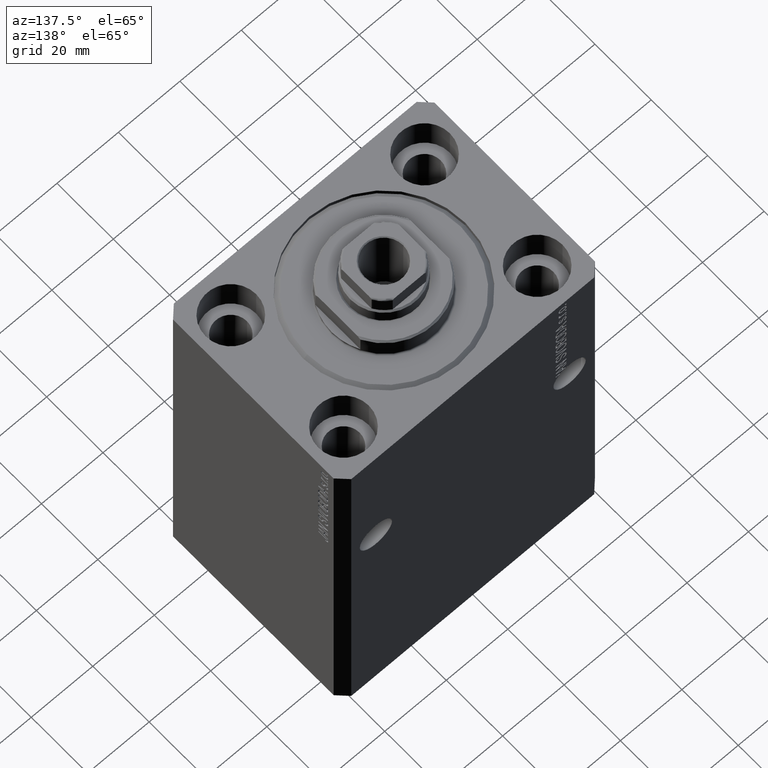
[diagram: clean part render]
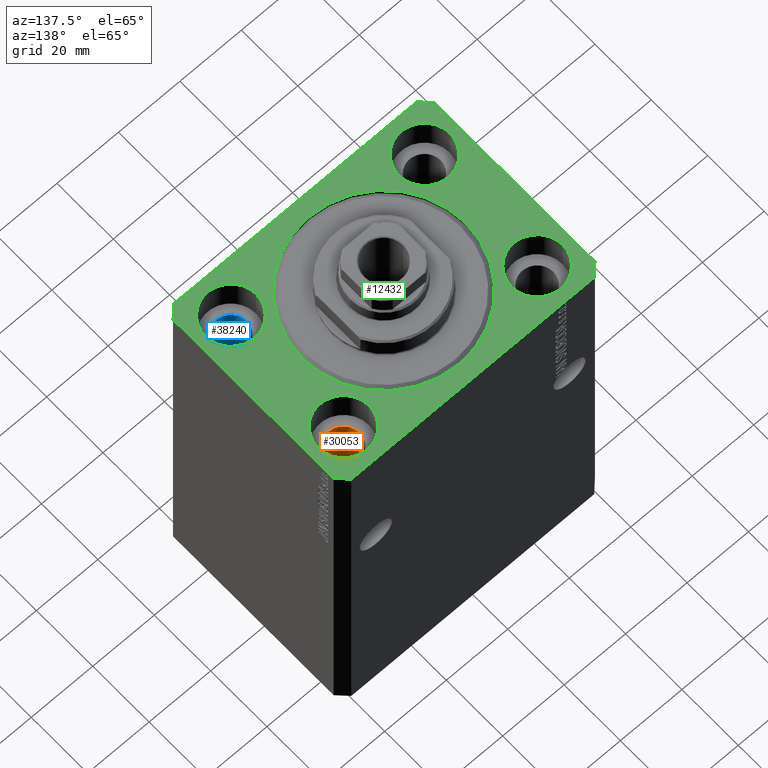
[diagram: same view with three faces highlighted in distinct colors, each labeled with its STEP entity id]
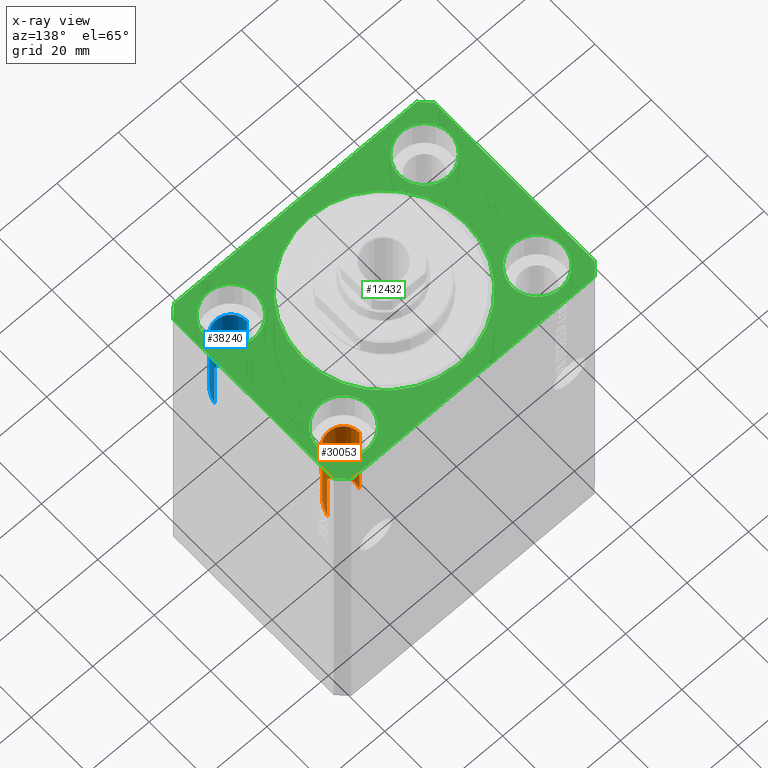
[diagram: x-ray of the same camera — body ghosted, the three highlighted faces saturated]
A machine part, auxiliary view with three faces highlighted in distinct colors.
The next image is the same camera in x-ray (body ghosted, the three faces saturated) — at least one of them is partly hidden behind the body in this view.
Their STEP definitions:

[orange] entity #30053 — the highlighted cylindrical surface (edge-blend (fillet) strip) has radius 5.25 mm, axis along (0, 0, 1).
#426 = CARTESIAN_POINT ( 'NONE',  ( 26.25000000000001066, 20.00000000000001066, -43.00000000000000000 ) ) ;
#1425 = CARTESIAN_POINT ( 'NONE',  ( 36.75000000000000000, 20.00000000000001066, -11.00000000000000000 ) ) ;
#2654 = CARTESIAN_POINT ( 'NONE',  ( 26.25000000000000355, 20.00000000000001066, -123.0000000000000000 ) ) ;
#2909 = FACE_OUTER_BOUND ( 'NONE', #40093, .T. ) ;
#3221 = DIRECTION ( 'NONE',  ( -0.000000000000000000, -0.000000000000000000, 1.000000000000000000 ) ) ;
#5150 = CARTESIAN_POINT ( 'NONE',  ( 26.25000000000001066, 20.00000000000001066, -43.00000000000000000 ) ) ;
#5717 = ORIENTED_EDGE ( 'NONE', *, *, #16400, .T. ) ;
#6108 = EDGE_CURVE ( 'NONE', #27236, #11741, #9751, .T. ) ;
#7091 = ORIENTED_EDGE ( 'NONE', *, *, #40215, .F. ) ;
#8584 = VECTOR ( 'NONE', #20137, 1000.000000000000000 ) ;
#9492 = DIRECTION ( 'NONE',  ( 1.000000000000000000, 0.000000000000000000, 0.000000000000000000 ) ) ;
#9751 =( BOUNDED_CURVE ( )  B_SPLINE_CURVE ( 3, ( #43433, #33688, #36206, #5150 ),
 .UNSPECIFIED., .F., .F. ) 
 B_SPLINE_CURVE_WITH_KNOTS ( ( 4, 4 ),
 ( 4.712388980384689674, 7.853981633974482790 ),
 .UNSPECIFIED. ) 
 CURVE ( )  GEOMETRIC_REPRESENTATION_ITEM ( )  RATIONAL_B_SPLINE_CURVE ( ( 1.000000000000000000, 0.3333333333333333703, 0.3333333333333333703, 1.000000000000000000 ) ) 
 REPRESENTATION_ITEM ( '' )  );
#11741 = VERTEX_POINT ( 'NONE', #426 ) ;
#13216 = LINE ( 'NONE', #16854, #30769 ) ;
#15999 = AXIS2_PLACEMENT_3D ( 'NONE', #17210, #16760, #9492 ) ;
#16022 = VERTEX_POINT ( 'NONE', #1425 ) ;
#16400 = EDGE_CURVE ( 'NONE', #11741, #29051, #34374, .T. ) ;
#16760 = DIRECTION ( 'NONE',  ( -0.000000000000000000, -0.000000000000000000, 1.000000000000000000 ) ) ;
#16854 = CARTESIAN_POINT ( 'NONE',  ( 36.75000000000000000, 20.00000000000001066, -123.0000000000000000 ) ) ;
#17210 = CARTESIAN_POINT ( 'NONE',  ( 31.50000000000000000, 20.00000000000001066, -123.0000000000000000 ) ) ;
#17541 = DIRECTION ( 'NONE',  ( 1.000000000000000000, 0.000000000000000000, 0.000000000000000000 ) ) ;
#18372 = CARTESIAN_POINT ( 'NONE',  ( 31.50000000000000000, 20.00000000000001066, -11.00000000000000000 ) ) ;
#20137 = DIRECTION ( 'NONE',  ( -0.000000000000000000, -0.000000000000000000, 1.000000000000000000 ) ) ;
#20615 = CYLINDRICAL_SURFACE ( 'NONE', #15999, 5.249999999999997335 ) ;
#21372 = CIRCLE ( 'NONE', #24997, 5.249999999999997335 ) ;
#24997 = AXIS2_PLACEMENT_3D ( 'NONE', #18372, #34287, #17541 ) ;
#27236 = VERTEX_POINT ( 'NONE', #33488 ) ;
#29051 = VERTEX_POINT ( 'NONE', #31000 ) ;
#29604 = ORIENTED_EDGE ( 'NONE', *, *, #6108, .T. ) ;
#30053 = ADVANCED_FACE ( 'NONE', ( #2909 ), #20615, .F. ) ;
#30769 = VECTOR ( 'NONE', #3221, 1000.000000000000000 ) ;
#31000 = CARTESIAN_POINT ( 'NONE',  ( 26.25000000000000355, 20.00000000000001066, -11.00000000000000000 ) ) ;
#33488 = CARTESIAN_POINT ( 'NONE',  ( 36.75000000000000711, 20.00000000000001066, -43.00000000000000000 ) ) ;
#33688 = CARTESIAN_POINT ( 'NONE',  ( 36.75000000000000000, 9.500000000000023093, -32.50000000000000711 ) ) ;
#34287 = DIRECTION ( 'NONE',  ( 0.000000000000000000, 0.000000000000000000, 1.000000000000000000 ) ) ;
#34374 = LINE ( 'NONE', #2654, #8584 ) ;
#36206 = CARTESIAN_POINT ( 'NONE',  ( 26.25000000000001776, 9.500000000000023093, -32.50000000000000711 ) ) ;
#39064 = ORIENTED_EDGE ( 'NONE', *, *, #43251, .T. ) ;
#40093 = EDGE_LOOP ( 'NONE', ( #29604, #5717, #39064, #7091 ) ) ;
#40215 = EDGE_CURVE ( 'NONE', #27236, #16022, #13216, .T. ) ;
#43251 = EDGE_CURVE ( 'NONE', #29051, #16022, #21372, .T. ) ;
#43433 = CARTESIAN_POINT ( 'NONE',  ( 36.75000000000000711, 20.00000000000001066, -43.00000000000000000 ) ) ;

[blue] entity #38240 — the highlighted cylindrical surface (edge-blend (fillet) strip) has radius 5.25 mm, axis along (0, 0, 1).
#1637 = EDGE_CURVE ( 'NONE', #27056, #9677, #19517, .T. ) ;
#2036 = DIRECTION ( 'NONE',  ( -0.000000000000000000, -0.000000000000000000, 1.000000000000000000 ) ) ;
#6104 = AXIS2_PLACEMENT_3D ( 'NONE', #7791, #15277, #8472 ) ;
#7791 = CARTESIAN_POINT ( 'NONE',  ( 31.50000000000000000, -20.00000000000000000, -11.00000000000000000 ) ) ;
#8415 = DIRECTION ( 'NONE',  ( -0.000000000000000000, -0.000000000000000000, 1.000000000000000000 ) ) ;
#8472 = DIRECTION ( 'NONE',  ( 1.000000000000000000, 0.000000000000000000, 0.000000000000000000 ) ) ;
#8633 = CARTESIAN_POINT ( 'NONE',  ( 31.50000000000000000, -20.00000000000000000, -123.0000000000000000 ) ) ;
#9076 = FACE_OUTER_BOUND ( 'NONE', #33759, .T. ) ;
#9677 = VERTEX_POINT ( 'NONE', #28658 ) ;
#12613 = VERTEX_POINT ( 'NONE', #17904 ) ;
#13996 = CARTESIAN_POINT ( 'NONE',  ( 36.75000000000000000, -20.00000000000000000, -123.0000000000000000 ) ) ;
#14646 = ORIENTED_EDGE ( 'NONE', *, *, #38781, .T. ) ;
#14979 = VERTEX_POINT ( 'NONE', #31403 ) ;
#15277 = DIRECTION ( 'NONE',  ( 0.000000000000000000, 0.000000000000000000, 1.000000000000000000 ) ) ;
#15311 = CARTESIAN_POINT ( 'NONE',  ( 36.75000000000000711, -20.00000000000000355, -43.00000000000000000 ) ) ;
#17904 = CARTESIAN_POINT ( 'NONE',  ( 36.75000000000000000, -20.00000000000000000, -11.00000000000000000 ) ) ;
#18941 = CARTESIAN_POINT ( 'NONE',  ( 26.25000000000001066, -20.00000000000000355, -43.00000000000000000 ) ) ;
#19118 =( BOUNDED_CURVE ( )  B_SPLINE_CURVE ( 3, ( #15311, #25967, #40197, #18941 ),
 .UNSPECIFIED., .F., .F. ) 
 B_SPLINE_CURVE_WITH_KNOTS ( ( 4, 4 ),
 ( 4.712388980384689674, 7.853981633974482790 ),
 .UNSPECIFIED. ) 
 CURVE ( )  GEOMETRIC_REPRESENTATION_ITEM ( )  RATIONAL_B_SPLINE_CURVE ( ( 1.000000000000000000, 0.3333333333333333703, 0.3333333333333333703, 1.000000000000000000 ) ) 
 REPRESENTATION_ITEM ( '' )  );
#19517 = LINE ( 'NONE', #23351, #44442 ) ;
#23351 = CARTESIAN_POINT ( 'NONE',  ( 26.25000000000000355, -20.00000000000000000, -123.0000000000000000 ) ) ;
#25784 = EDGE_CURVE ( 'NONE', #14979, #27056, #19118, .T. ) ;
#25967 = CARTESIAN_POINT ( 'NONE',  ( 36.75000000000000000, -30.49999999999999645, -32.50000000000000711 ) ) ;
#27056 = VERTEX_POINT ( 'NONE', #33537 ) ;
#27485 = ORIENTED_EDGE ( 'NONE', *, *, #25784, .T. ) ;
#27842 = CIRCLE ( 'NONE', #6104, 5.249999999999997335 ) ;
#28649 = ORIENTED_EDGE ( 'NONE', *, *, #1637, .T. ) ;
#28658 = CARTESIAN_POINT ( 'NONE',  ( 26.25000000000000355, -20.00000000000000000, -11.00000000000000000 ) ) ;
#29913 = CYLINDRICAL_SURFACE ( 'NONE', #40110, 5.249999999999997335 ) ;
#31403 = CARTESIAN_POINT ( 'NONE',  ( 36.75000000000000711, -20.00000000000000355, -43.00000000000000000 ) ) ;
#31657 = DIRECTION ( 'NONE',  ( -0.000000000000000000, -0.000000000000000000, 1.000000000000000000 ) ) ;
#32042 = VECTOR ( 'NONE', #31657, 1000.000000000000000 ) ;
#32255 = ORIENTED_EDGE ( 'NONE', *, *, #34402, .F. ) ;
#32877 = DIRECTION ( 'NONE',  ( 1.000000000000000000, 0.000000000000000000, 0.000000000000000000 ) ) ;
#33537 = CARTESIAN_POINT ( 'NONE',  ( 26.25000000000001066, -20.00000000000000355, -43.00000000000000000 ) ) ;
#33759 = EDGE_LOOP ( 'NONE', ( #27485, #28649, #14646, #32255 ) ) ;
#34402 = EDGE_CURVE ( 'NONE', #14979, #12613, #35278, .T. ) ;
#35278 = LINE ( 'NONE', #13996, #32042 ) ;
#38240 = ADVANCED_FACE ( 'NONE', ( #9076 ), #29913, .F. ) ;
#38781 = EDGE_CURVE ( 'NONE', #9677, #12613, #27842, .T. ) ;
#40110 = AXIS2_PLACEMENT_3D ( 'NONE', #8633, #8415, #32877 ) ;
#40197 = CARTESIAN_POINT ( 'NONE',  ( 26.25000000000001776, -30.49999999999999645, -32.50000000000000711 ) ) ;
#44442 = VECTOR ( 'NONE', #2036, 1000.000000000000000 ) ;

[green] entity #12432 — the highlighted planar face has unit normal (0, 0, 1).
#77 = EDGE_CURVE ( 'NONE', #43619, #6800, #38381, .T. ) ;
#795 = AXIS2_PLACEMENT_3D ( 'NONE', #31968, #14543, #11559 ) ;
#1208 = DIRECTION ( 'NONE',  ( 1.000000000000000000, 0.000000000000000000, -0.000000000000000000 ) ) ;
#1496 = VERTEX_POINT ( 'NONE', #28578 ) ;
#1568 = AXIS2_PLACEMENT_3D ( 'NONE', #33903, #9654, #26679 ) ;
#1583 = DIRECTION ( 'NONE',  ( 1.000000000000000000, 0.000000000000000000, 0.000000000000000000 ) ) ;
#1744 = ORIENTED_EDGE ( 'NONE', *, *, #21378, .T. ) ;
#1815 = AXIS2_PLACEMENT_3D ( 'NONE', #11629, #22073, #18008 ) ;
#1938 = AXIS2_PLACEMENT_3D ( 'NONE', #5646, #19516, #1208 ) ;
#1992 = CARTESIAN_POINT ( 'NONE',  ( 42.50000000000000711, -28.50000000000000355, 0.000000000000000000 ) ) ;
#2027 = VERTEX_POINT ( 'NONE', #20806 ) ;
#2096 = DIRECTION ( 'NONE',  ( 8.886653596232072440E-15, 1.000000000000000000, 0.000000000000000000 ) ) ;
#2214 = ORIENTED_EDGE ( 'NONE', *, *, #42080, .F. ) ;
#2230 = CIRCLE ( 'NONE', #795, 8.249999999999992895 ) ;
#2293 = VERTEX_POINT ( 'NONE', #5978 ) ;
#3933 = CARTESIAN_POINT ( 'NONE',  ( -42.50000000000000000, -28.50000000000000000, 0.000000000000000000 ) ) ;
#4364 = DIRECTION ( 'NONE',  ( -0.7071067811865356934, 0.7071067811865594521, 0.000000000000000000 ) ) ;
#4381 = VERTEX_POINT ( 'NONE', #1992 ) ;
#4525 = CARTESIAN_POINT ( 'NONE',  ( 0.000000000000000000, 0.000000000000000000, 0.000000000000000000 ) ) ;
#4579 = VECTOR ( 'NONE', #4364, 1000.000000000000114 ) ;
#4832 = ORIENTED_EDGE ( 'NONE', *, *, #77, .T. ) ;
#5646 = CARTESIAN_POINT ( 'NONE',  ( 0.000000000000000000, 0.000000000000000000, 0.000000000000000000 ) ) ;
#5978 = CARTESIAN_POINT ( 'NONE',  ( -39.50000000000000711, 31.50000000000000000, 0.000000000000000000 ) ) ;
#6074 = DIRECTION ( 'NONE',  ( -0.7071067811865471286, -0.7071067811865479058, 0.000000000000000000 ) ) ;
#6124 = VECTOR ( 'NONE', #35760, 1000.000000000000000 ) ;
#6800 = VERTEX_POINT ( 'NONE', #19566 ) ;
#7240 = EDGE_LOOP ( 'NONE', ( #37243, #10606 ) ) ;
#7417 = EDGE_CURVE ( 'NONE', #1496, #14856, #20746, .T. ) ;
#7521 = EDGE_CURVE ( 'NONE', #13401, #11535, #32936, .T. ) ;
#7593 = CARTESIAN_POINT ( 'NONE',  ( 39.50000000000000711, -31.50000000000000000, 0.000000000000000000 ) ) ;
#7708 = DIRECTION ( 'NONE',  ( 0.000000000000000000, 0.000000000000000000, 1.000000000000000000 ) ) ;
#7716 = VERTEX_POINT ( 'NONE', #29740 ) ;
#8331 = EDGE_CURVE ( 'NONE', #4381, #43619, #22972, .T. ) ;
#8430 = CARTESIAN_POINT ( 'NONE',  ( 23.25000000000000355, 20.00000000000001066, 0.000000000000000000 ) ) ;
#8515 = AXIS2_PLACEMENT_3D ( 'NONE', #19282, #29229, #1583 ) ;
#8600 = CARTESIAN_POINT ( 'NONE',  ( -31.50000000000000000, -20.00000000000000000, 0.000000000000000000 ) ) ;
#8771 = CARTESIAN_POINT ( 'NONE',  ( -42.50000000000000000, 28.50000000000000000, 0.000000000000000000 ) ) ;
#9258 = CIRCLE ( 'NONE', #8515, 26.50000000000000355 ) ;
#9454 = CIRCLE ( 'NONE', #23929, 8.250000000000000000 ) ;
#9654 = DIRECTION ( 'NONE',  ( 0.000000000000000000, 0.000000000000000000, 1.000000000000000000 ) ) ;
#10606 = ORIENTED_EDGE ( 'NONE', *, *, #31533, .F. ) ;
#10960 = FACE_BOUND ( 'NONE', #26940, .T. ) ;
#11065 = CARTESIAN_POINT ( 'NONE',  ( 42.50000000000051870, 28.49999999999995381, 0.000000000000000000 ) ) ;
#11381 = DIRECTION ( 'NONE',  ( 1.000000000000000000, 0.000000000000000000, 0.000000000000000000 ) ) ;
#11535 = VERTEX_POINT ( 'NONE', #14323 ) ;
#11559 = DIRECTION ( 'NONE',  ( 1.000000000000000000, 0.000000000000000000, 0.000000000000000000 ) ) ;
#11629 = CARTESIAN_POINT ( 'NONE',  ( -31.50000000000000000, 20.00000000000000000, 0.000000000000000000 ) ) ;
#11944 = VERTEX_POINT ( 'NONE', #35992 ) ;
#12036 = CARTESIAN_POINT ( 'NONE',  ( 39.74999999999999289, -20.00000000000000000, 0.000000000000000000 ) ) ;
#12162 = ORIENTED_EDGE ( 'NONE', *, *, #43410, .T. ) ;
#12432 = ADVANCED_FACE ( 'NONE', ( #35426, #36709, #35205, #15256, #10960, #21399 ), #38832, .T. ) ;
#13103 = VERTEX_POINT ( 'NONE', #23904 ) ;
#13401 = VERTEX_POINT ( 'NONE', #22736 ) ;
#13742 = VERTEX_POINT ( 'NONE', #12036 ) ;
#14231 = DIRECTION ( 'NONE',  ( 1.000000000000000000, 0.000000000000000000, 0.000000000000000000 ) ) ;
#14323 = CARTESIAN_POINT ( 'NONE',  ( -23.25000000000000000, 20.00000000000000000, 0.000000000000000000 ) ) ;
#14428 = EDGE_CURVE ( 'NONE', #7716, #30172, #9258, .T. ) ;
#14543 = DIRECTION ( 'NONE',  ( 0.000000000000000000, 0.000000000000000000, 1.000000000000000000 ) ) ;
#14856 = VERTEX_POINT ( 'NONE', #7593 ) ;
#15256 = FACE_BOUND ( 'NONE', #39632, .T. ) ;
#15697 = CARTESIAN_POINT ( 'NONE',  ( 39.50000000000000711, -31.50000000000000000, 0.000000000000000000 ) ) ;
#15915 = DIRECTION ( 'NONE',  ( 0.7071067811865483499, 0.7071067811865466846, 0.000000000000000000 ) ) ;
#16906 = VECTOR ( 'NONE', #27162, 1000.000000000000000 ) ;
#17698 = ORIENTED_EDGE ( 'NONE', *, *, #8331, .T. ) ;
#18008 = DIRECTION ( 'NONE',  ( 1.000000000000000000, 0.000000000000000000, 0.000000000000000000 ) ) ;
#18069 = CARTESIAN_POINT ( 'NONE',  ( 31.50000000000000000, 20.00000000000001066, 0.000000000000000000 ) ) ;
#18350 = EDGE_CURVE ( 'NONE', #14856, #4381, #43546, .T. ) ;
#18955 = CIRCLE ( 'NONE', #1568, 8.250000000000000000 ) ;
#19210 = VECTOR ( 'NONE', #34536, 1000.000000000000000 ) ;
#19282 = CARTESIAN_POINT ( 'NONE',  ( 0.000000000000000000, 0.000000000000000000, 0.000000000000000000 ) ) ;
#19516 = DIRECTION ( 'NONE',  ( 0.000000000000000000, 0.000000000000000000, 1.000000000000000000 ) ) ;
#19566 = CARTESIAN_POINT ( 'NONE',  ( 39.50000000000056843, 31.50000000000000000, 0.000000000000000000 ) ) ;
#20522 = ORIENTED_EDGE ( 'NONE', *, *, #29914, .F. ) ;
#20597 = AXIS2_PLACEMENT_3D ( 'NONE', #35405, #27959, #11381 ) ;
#20746 = LINE ( 'NONE', #41544, #19210 ) ;
#20781 = VERTEX_POINT ( 'NONE', #21988 ) ;
#20806 = CARTESIAN_POINT ( 'NONE',  ( 23.25000000000000355, -20.00000000000000000, 0.000000000000000000 ) ) ;
#21378 = EDGE_CURVE ( 'NONE', #34758, #1496, #33384, .T. ) ;
#21399 = FACE_OUTER_BOUND ( 'NONE', #41581, .T. ) ;
#21557 = DIRECTION ( 'NONE',  ( 1.000000000000000000, 0.000000000000000000, 0.000000000000000000 ) ) ;
#21765 = DIRECTION ( 'NONE',  ( 1.000000000000000000, 0.000000000000000000, 0.000000000000000000 ) ) ;
#21988 = CARTESIAN_POINT ( 'NONE',  ( -42.50000000000000000, 28.50000000000000000, 0.000000000000000000 ) ) ;
#22073 = DIRECTION ( 'NONE',  ( 0.000000000000000000, 0.000000000000000000, 1.000000000000000000 ) ) ;
#22685 = ORIENTED_EDGE ( 'NONE', *, *, #7521, .F. ) ;
#22736 = CARTESIAN_POINT ( 'NONE',  ( -39.75000000000000000, 20.00000000000000000, 0.000000000000000000 ) ) ;
#22972 = LINE ( 'NONE', #23193, #25736 ) ;
#23193 = CARTESIAN_POINT ( 'NONE',  ( 42.50000000000000711, -28.50000000000000355, 0.000000000000000000 ) ) ;
#23904 = CARTESIAN_POINT ( 'NONE',  ( -39.75000000000000000, -20.00000000000000000, 0.000000000000000000 ) ) ;
#23929 = AXIS2_PLACEMENT_3D ( 'NONE', #8600, #42136, #21765 ) ;
#24727 = AXIS2_PLACEMENT_3D ( 'NONE', #4525, #7708, #21557 ) ;
#25034 = AXIS2_PLACEMENT_3D ( 'NONE', #42809, #39850, #39418 ) ;
#25089 = DIRECTION ( 'NONE',  ( 0.000000000000000000, 0.000000000000000000, 1.000000000000000000 ) ) ;
#25123 = VERTEX_POINT ( 'NONE', #8430 ) ;
#25286 = VECTOR ( 'NONE', #15915, 1000.000000000000000 ) ;
#25511 = ORIENTED_EDGE ( 'NONE', *, *, #18350, .T. ) ;
#25736 = VECTOR ( 'NONE', #2096, 1000.000000000000000 ) ;
#26130 = CIRCLE ( 'NONE', #24727, 26.50000000000000355 ) ;
#26142 = ORIENTED_EDGE ( 'NONE', *, *, #30479, .F. ) ;
#26386 = CARTESIAN_POINT ( 'NONE',  ( -42.50000000000000000, -28.50000000000000000, 0.000000000000000000 ) ) ;
#26663 = EDGE_CURVE ( 'NONE', #42488, #25123, #36912, .T. ) ;
#26679 = DIRECTION ( 'NONE',  ( 1.000000000000000000, 0.000000000000000000, 0.000000000000000000 ) ) ;
#26940 = EDGE_LOOP ( 'NONE', ( #20522, #27569 ) ) ;
#27162 = DIRECTION ( 'NONE',  ( -1.000000000000000000, 0.000000000000000000, 0.000000000000000000 ) ) ;
#27569 = ORIENTED_EDGE ( 'NONE', *, *, #14428, .F. ) ;
#27959 = DIRECTION ( 'NONE',  ( 0.000000000000000000, 0.000000000000000000, 1.000000000000000000 ) ) ;
#28048 = EDGE_CURVE ( 'NONE', #11944, #13103, #9454, .T. ) ;
#28264 = DIRECTION ( 'NONE',  ( 1.000000000000000000, 0.000000000000000000, 0.000000000000000000 ) ) ;
#28333 = ORIENTED_EDGE ( 'NONE', *, *, #29874, .F. ) ;
#28360 = AXIS2_PLACEMENT_3D ( 'NONE', #32088, #25089, #14231 ) ;
#28578 = CARTESIAN_POINT ( 'NONE',  ( -39.50000000000000711, -31.50000000000000000, 0.000000000000000000 ) ) ;
#29229 = DIRECTION ( 'NONE',  ( 0.000000000000000000, 0.000000000000000000, 1.000000000000000000 ) ) ;
#29454 = LINE ( 'NONE', #44617, #30009 ) ;
#29740 = CARTESIAN_POINT ( 'NONE',  ( -26.50000000000000355, 3.245314017740485765E-15, 0.000000000000000000 ) ) ;
#29874 = EDGE_CURVE ( 'NONE', #13742, #2027, #2230, .T. ) ;
#29914 = EDGE_CURVE ( 'NONE', #30172, #7716, #26130, .T. ) ;
#30009 = VECTOR ( 'NONE', #6074, 1000.000000000000000 ) ;
#30172 = VERTEX_POINT ( 'NONE', #41411 ) ;
#30479 = EDGE_CURVE ( 'NONE', #13103, #11944, #18955, .T. ) ;
#31533 = EDGE_CURVE ( 'NONE', #25123, #42488, #34853, .T. ) ;
#31919 = ORIENTED_EDGE ( 'NONE', *, *, #40608, .F. ) ;
#31968 = CARTESIAN_POINT ( 'NONE',  ( 31.50000000000000000, -20.00000000000000000, 0.000000000000000000 ) ) ;
#32088 = CARTESIAN_POINT ( 'NONE',  ( 31.50000000000000000, 20.00000000000001066, 0.000000000000000000 ) ) ;
#32596 = EDGE_LOOP ( 'NONE', ( #28333, #2214 ) ) ;
#32847 = CARTESIAN_POINT ( 'NONE',  ( 39.74999999999999289, 20.00000000000001066, 0.000000000000000000 ) ) ;
#32936 = CIRCLE ( 'NONE', #1815, 8.250000000000000000 ) ;
#33384 = LINE ( 'NONE', #26386, #33387 ) ;
#33387 = VECTOR ( 'NONE', #39525, 1000.000000000000000 ) ;
#33487 = CARTESIAN_POINT ( 'NONE',  ( 39.50000000000056843, 31.50000000000000000, 0.000000000000000000 ) ) ;
#33602 = CIRCLE ( 'NONE', #20597, 8.249999999999992895 ) ;
#33672 = CIRCLE ( 'NONE', #25034, 8.250000000000000000 ) ;
#33903 = CARTESIAN_POINT ( 'NONE',  ( -31.50000000000000000, -20.00000000000000000, 0.000000000000000000 ) ) ;
#34536 = DIRECTION ( 'NONE',  ( 1.000000000000000000, 0.000000000000000000, 0.000000000000000000 ) ) ;
#34758 = VERTEX_POINT ( 'NONE', #3933 ) ;
#34853 = CIRCLE ( 'NONE', #28360, 8.249999999999992895 ) ;
#35205 = FACE_BOUND ( 'NONE', #7240, .T. ) ;
#35348 = EDGE_CURVE ( 'NONE', #6800, #2293, #40942, .T. ) ;
#35405 = CARTESIAN_POINT ( 'NONE',  ( 31.50000000000000000, -20.00000000000000000, 0.000000000000000000 ) ) ;
#35426 = FACE_BOUND ( 'NONE', #36006, .T. ) ;
#35480 = ORIENTED_EDGE ( 'NONE', *, *, #28048, .F. ) ;
#35719 = DIRECTION ( 'NONE',  ( 0.000000000000000000, 0.000000000000000000, 1.000000000000000000 ) ) ;
#35760 = DIRECTION ( 'NONE',  ( 0.000000000000000000, -1.000000000000000000, 0.000000000000000000 ) ) ;
#35992 = CARTESIAN_POINT ( 'NONE',  ( -23.25000000000000000, -20.00000000000000000, 0.000000000000000000 ) ) ;
#36006 = EDGE_LOOP ( 'NONE', ( #35480, #26142 ) ) ;
#36642 = LINE ( 'NONE', #8771, #6124 ) ;
#36709 = FACE_BOUND ( 'NONE', #32596, .T. ) ;
#36912 = CIRCLE ( 'NONE', #38372, 8.249999999999992895 ) ;
#37243 = ORIENTED_EDGE ( 'NONE', *, *, #26663, .F. ) ;
#37802 = ORIENTED_EDGE ( 'NONE', *, *, #7417, .T. ) ;
#38271 = ORIENTED_EDGE ( 'NONE', *, *, #35348, .T. ) ;
#38372 = AXIS2_PLACEMENT_3D ( 'NONE', #18069, #35719, #28264 ) ;
#38381 = LINE ( 'NONE', #42205, #4579 ) ;
#38832 = PLANE ( 'NONE',  #1938 ) ;
#39418 = DIRECTION ( 'NONE',  ( 1.000000000000000000, 0.000000000000000000, 0.000000000000000000 ) ) ;
#39525 = DIRECTION ( 'NONE',  ( 0.7071067811865471286, -0.7071067811865479058, 0.000000000000000000 ) ) ;
#39632 = EDGE_LOOP ( 'NONE', ( #31919, #22685 ) ) ;
#39850 = DIRECTION ( 'NONE',  ( 0.000000000000000000, 0.000000000000000000, 1.000000000000000000 ) ) ;
#40608 = EDGE_CURVE ( 'NONE', #11535, #13401, #33672, .T. ) ;
#40756 = ORIENTED_EDGE ( 'NONE', *, *, #43664, .T. ) ;
#40942 = LINE ( 'NONE', #33487, #16906 ) ;
#41411 = CARTESIAN_POINT ( 'NONE',  ( 26.50000000000000355, 0.000000000000000000, 0.000000000000000000 ) ) ;
#41544 = CARTESIAN_POINT ( 'NONE',  ( -39.50000000000000711, -31.50000000000000000, 0.000000000000000000 ) ) ;
#41581 = EDGE_LOOP ( 'NONE', ( #38271, #12162, #40756, #1744, #37802, #25511, #17698, #4832 ) ) ;
#42080 = EDGE_CURVE ( 'NONE', #2027, #13742, #33602, .T. ) ;
#42136 = DIRECTION ( 'NONE',  ( 0.000000000000000000, 0.000000000000000000, 1.000000000000000000 ) ) ;
#42205 = CARTESIAN_POINT ( 'NONE',  ( 42.50000000000051870, 28.49999999999995381, 0.000000000000000000 ) ) ;
#42488 = VERTEX_POINT ( 'NONE', #32847 ) ;
#42809 = CARTESIAN_POINT ( 'NONE',  ( -31.50000000000000000, 20.00000000000000000, 0.000000000000000000 ) ) ;
#43410 = EDGE_CURVE ( 'NONE', #2293, #20781, #29454, .T. ) ;
#43546 = LINE ( 'NONE', #15697, #25286 ) ;
#43619 = VERTEX_POINT ( 'NONE', #11065 ) ;
#43664 = EDGE_CURVE ( 'NONE', #20781, #34758, #36642, .T. ) ;
#44617 = CARTESIAN_POINT ( 'NONE',  ( -39.50000000000000711, 31.50000000000000000, 0.000000000000000000 ) ) ;